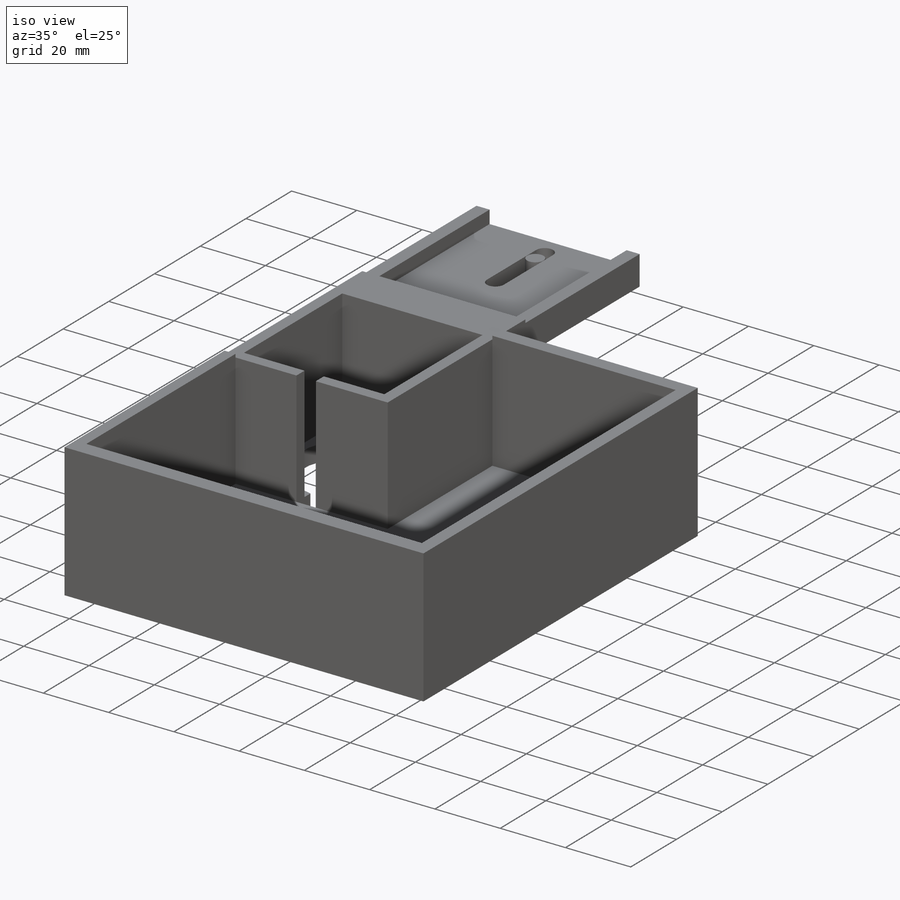
[diagram: iso view]
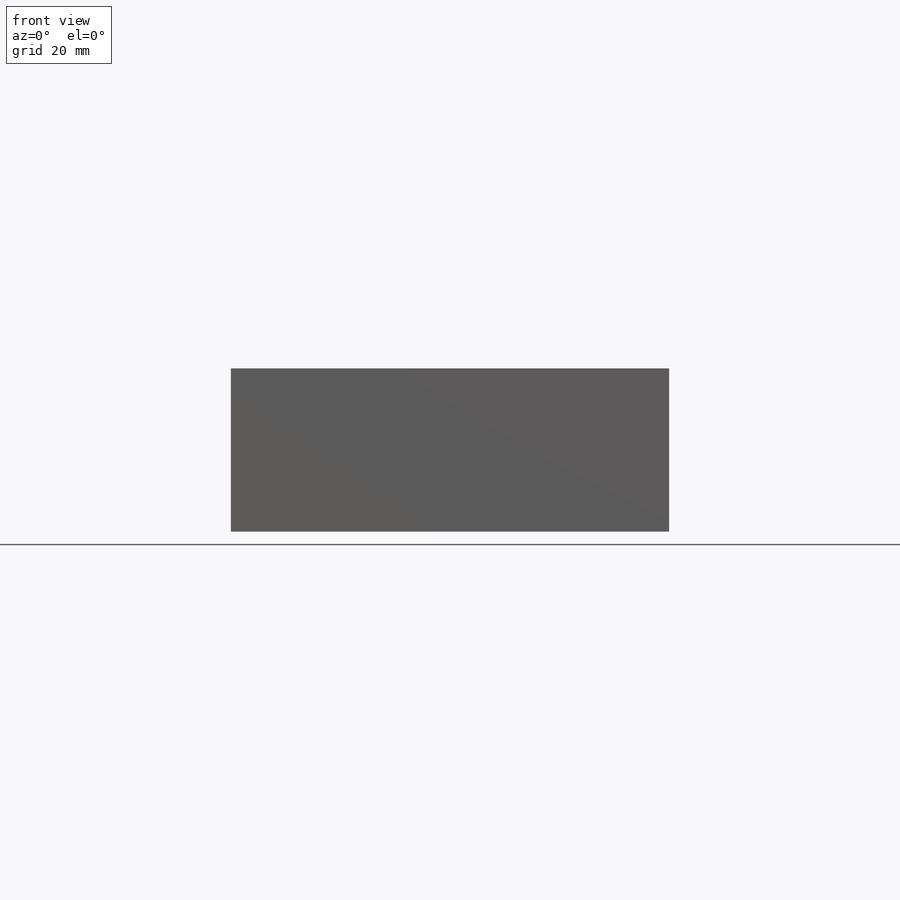
[diagram: front view]
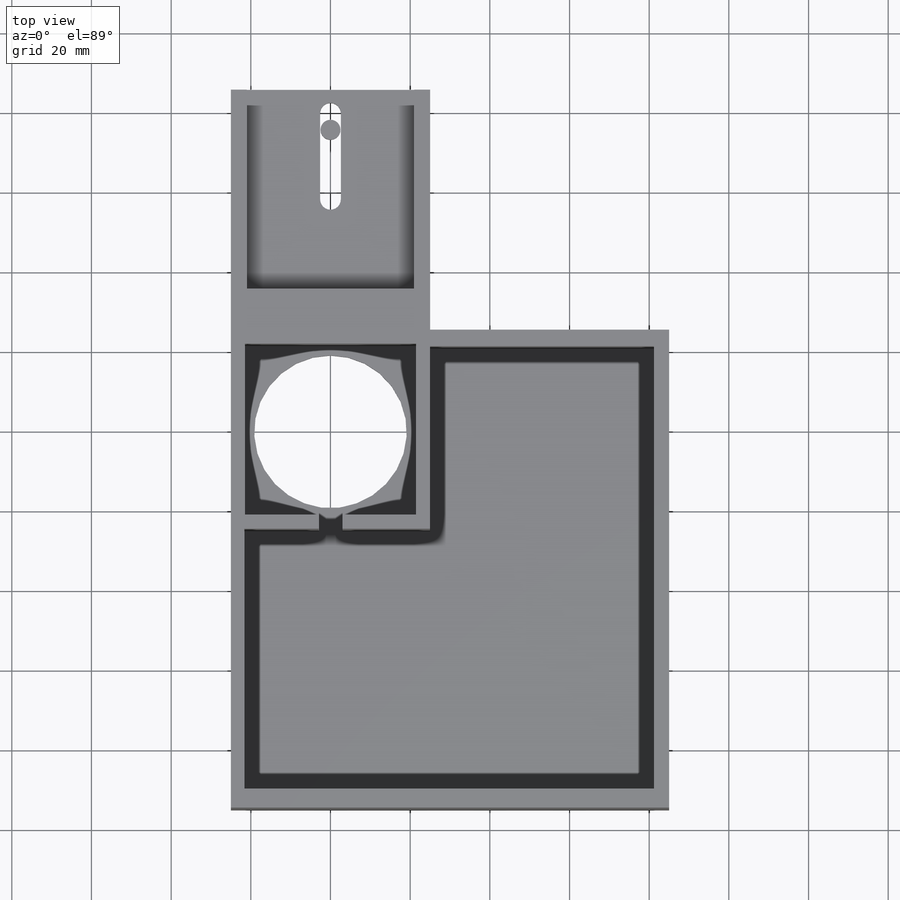
[diagram: top view]
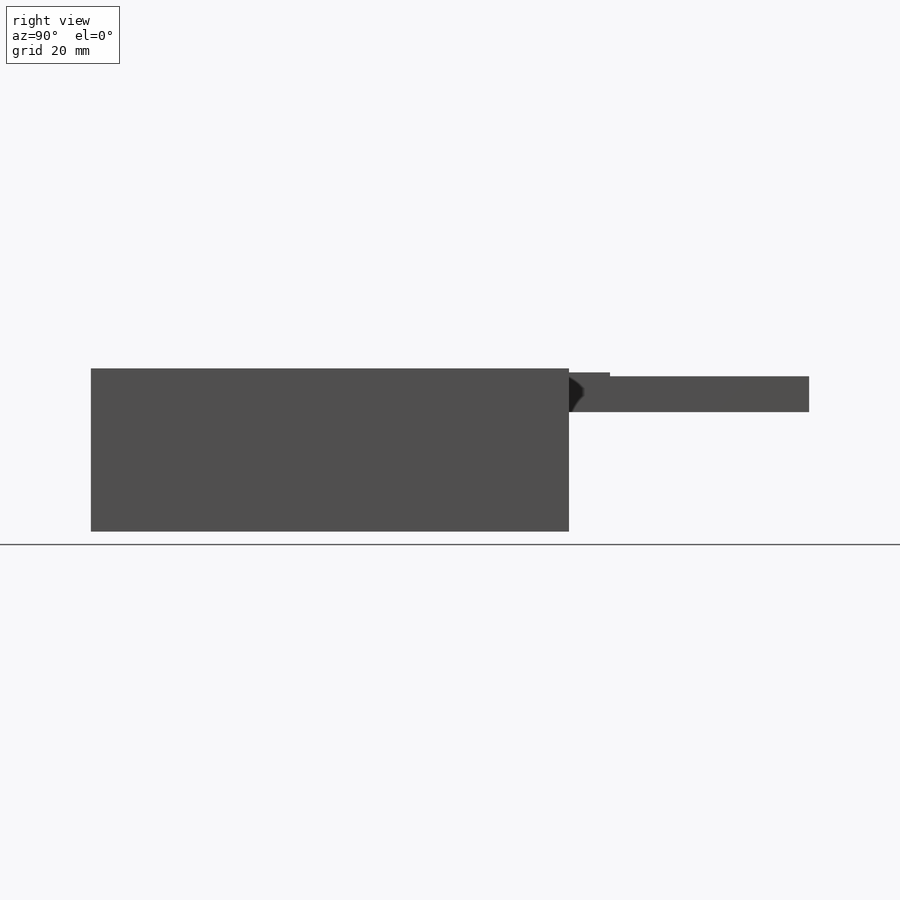
[diagram: right view]
SOLIDWORKS PART (.sldprt)
format: sldprt  version: not decoded by parser v0  size: 327,680 bytes
history: native  units: mm
features: sketch x12, cut_extrude x6, extrude x5, plane x3, material x1 (+9 scaffold rows collapsed)
feature tree (36):
  scaffold x9  (default folders/planes/origin — collapsed)
  material  "Material <sin especificar>"
  plane  "Alzado"
  plane  "Planta"
  plane  "Vista lateral"
  sketch  "Croquis1"  dims[D1=50.0mm D2=50.0mm]
  extrude  "Saliente-Extruir1"  Depth=40mm
  sketch  "Croquis3"  dims[c1.D1=5.0mm c1.D2=5.0mm c1.D3=40.0mm c2.D1=43.0mm c2.D2=43.0mm]
  cut_extrude  "Cortar-Extruir3"  Depth=35mm
  sketch  "Croquis4"
  sketch  "Croquis5"  dims[D1=~10.279143mm D2=10.0mm]
  extrude  "Saliente-Extruir2"  Depth=25mm
  sketch  "Croquis6"  dims[D1=5.0mm D2=50.0mm]
  extrude  "Saliente-Extruir3"  Depth=25mm
  sketch  "Croquis7"  dims[D1=4.0mm]
  extrude  "Saliente-Extruir4"  Depth=4mm
  sketch  "Croquis8"  dims[D2=5.0mm D1=10.0mm]
  cut_extrude  "Cortar-Extruir5"  Depth=24mm
  sketch  "Croquis12"
  cut_extrude  "Cortar-Extruir7"  Depth=10mm
  sketch  "Croquis13"
  cut_extrude  "Cortar-Extruir8"  Depth=10mm
  sketch  "Croquis14"  dims[D1=50.0mm D2=60.0mm D3=110.0mm]
  extrude  "Saliente-Extruir6"  Depth=41mm
  sketch  "Croquis15"
  cut_extrude  "Cortar-Extruir9"  Depth=36mm
  sketch  "Croquis16"  dims[D1=9.2mm D2=12.0mm]
  cut_extrude  "Cortar-Extruir10"  Depth=36mm
decode coverage: 19 of 23 modeling features carry decoded parameters
note: ~ marks probable driven/reference dimensions
note: suppression state not decoded; provenance and decode notes live in map.json
